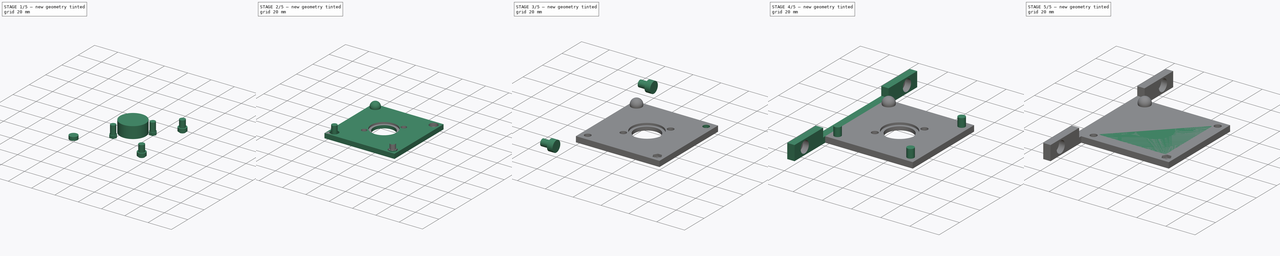
[diagram: build sequence overview — one tinted view per stage of 5, left to right]
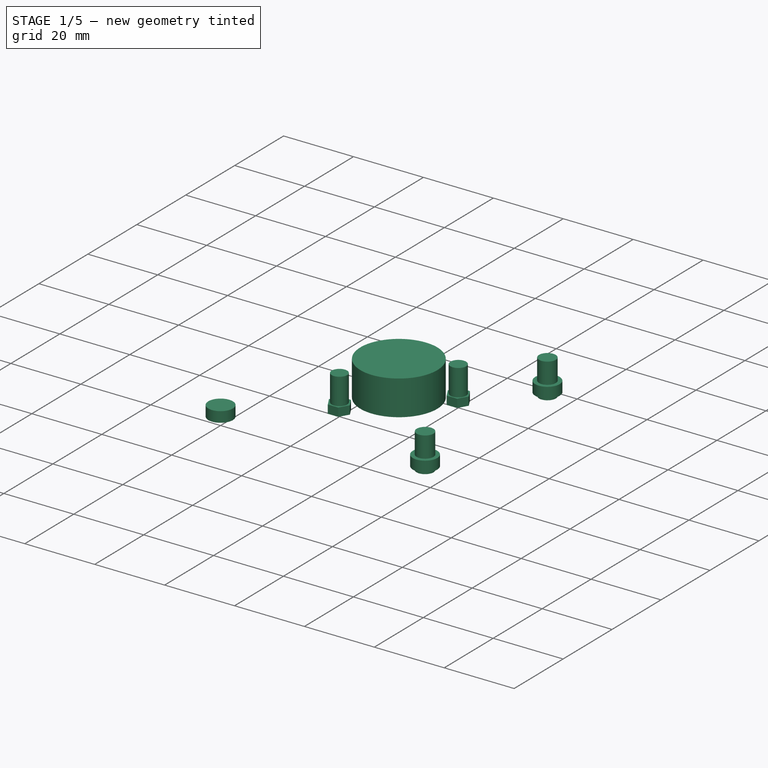
[diagram: stage 1 of 5 — iso view after this stage's code; geometry added in this stage tinted green]
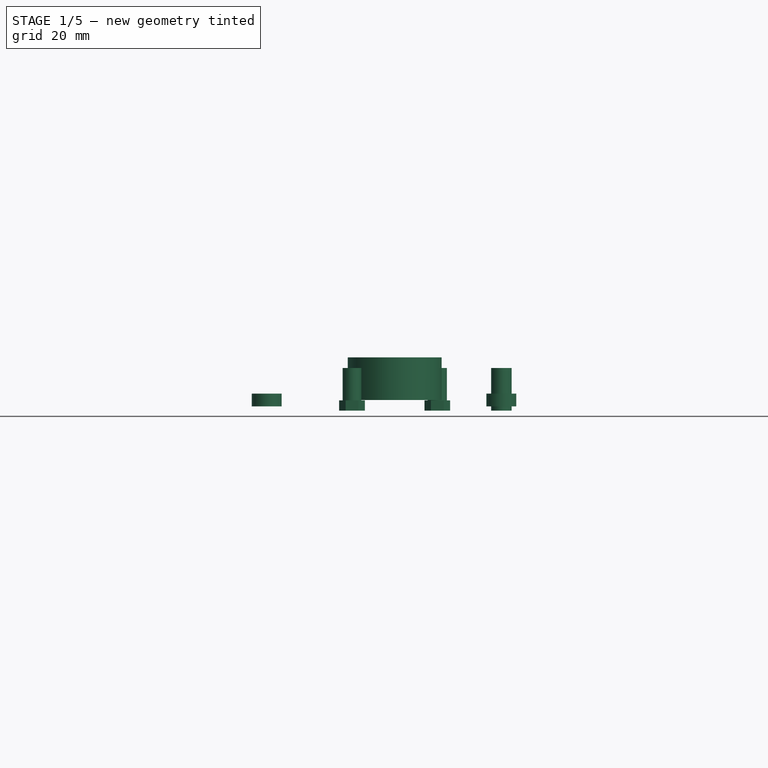
[diagram: stage 1 of 5 — front view after this stage's code; geometry added in this stage tinted green]
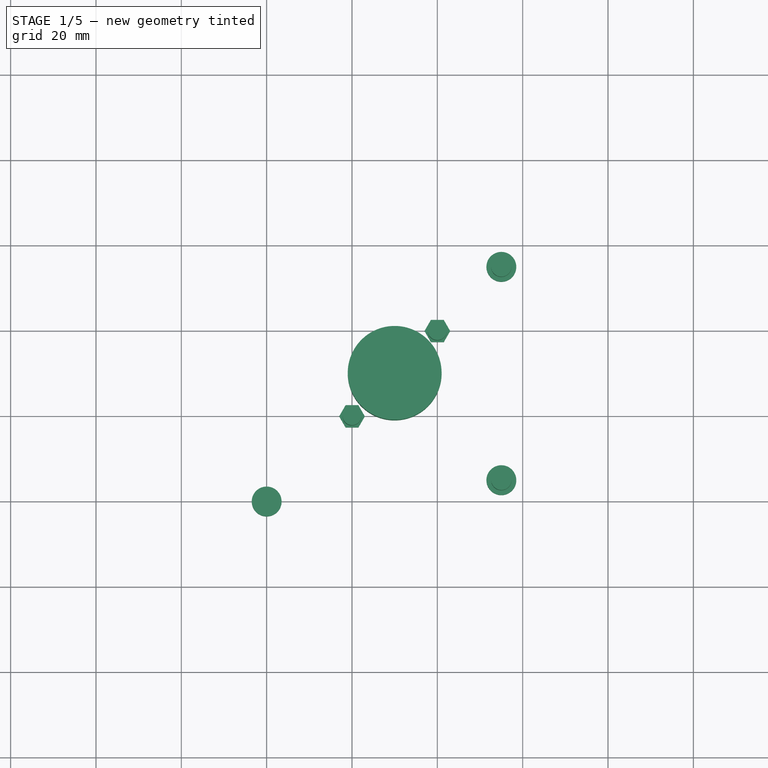
[diagram: stage 1 of 5 — top view after this stage's code; geometry added in this stage tinted green]
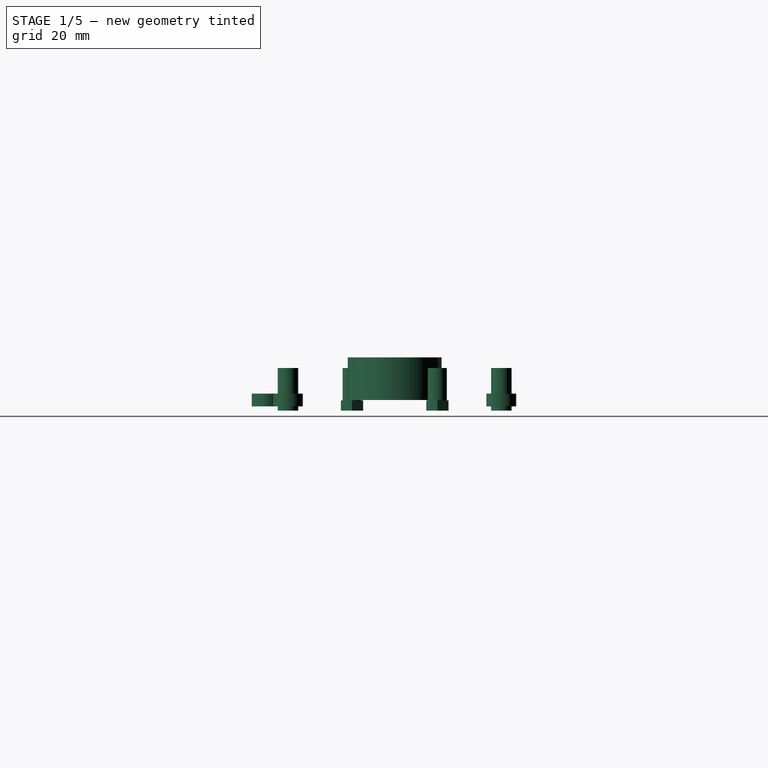
[diagram: stage 1 of 5 — right view after this stage's code; geometry added in this stage tinted green]
FCSTD DOCUMENT  (FreeCAD 0.21R0.20.1)
Label: KinematicMount01
License: All rights reserved
LicenseURL: https://en.wikipedia.org/wiki/All_rights_reserved
objects: Part::Cylinder×28, Part::MultiFuse×20, Part::Cut×11, Part::Box×6, App::Link×6, Part::Compound×5, Sketcher::SketchObject×3, Part::Extrusion×3, Part::Sphere×2
note: 78 computed .brp shape members not serialized (recipe doc carries the construction recipe); baked Part::Feature solids carry a one-line shape summary decoded from their .brp
EXTERNAL_REF file=../Fastener/Templates/Nut_DIN934_M4.FCStd obj=Extrude

FEATURE [Part::Cylinder] Cylinder024
  Angle = 360
  AttacherType = Attacher::AttachEngine3D
  FirstAngle = 0
  Height = 3
  Placement = pos=(0,0,1) rot=(0,0,1;0rad)
  Radius = 3.5
  SecondAngle = 0
FEATURE [Part::Cylinder] Cylinder025
  Angle = 360
  AttacherType = Attacher::AttachEngine3D
  FirstAngle = 0
  Height = 10
  Radius = 2.4
  SecondAngle = 0
FEATURE [Part::Cylinder] Cylinder026
  Angle = 360
  AttacherType = Attacher::AttachEngine3D
  FirstAngle = 0
  Height = 3
  Placement = pos=(0,0,1) rot=(0,0,1;0rad)
  Radius = 3.5
  SecondAngle = 0
FEATURE [Part::Cylinder] Cylinder027
  Angle = 360
  AttacherType = Attacher::AttachEngine3D
  FirstAngle = 0
  Height = 10
  Radius = 2.4
  SecondAngle = 0
FEATURE [Part::Cylinder] Cylinder028
  Angle = 360
  AttacherType = Attacher::AttachEngine3D
  FirstAngle = 0
  Height = 3
  Placement = pos=(0,0,1) rot=(0,0,1;0rad)
  Radius = 3.5
  SecondAngle = 0
FEATURE [Part::MultiFuse] Fusion023
  Placement = pos=(55,5,0) rot=(0,0,1;0rad)
  Shapes = -> [Cylinder025,Cylinder026]
FEATURE [Part::MultiFuse] Fusion024
  Placement = pos=(55,55,0) rot=(0,0,1;0rad)
  Shapes = -> [Cylinder027,Cylinder028]
FEATURE [Part::Cylinder] Cylinder029
  Angle = 360
  AttacherType = Attacher::AttachEngine3D
  FirstAngle = 0
  Height = 10
  Placement = pos=(30,30,2.5) rot=(0,0,1;0rad)
  Radius = 11
  SecondAngle = 0
FEATURE [Sketcher::SketchObject] Sketch001
  FullyConstrained = true
  sketch-geometry (7):
    g0: LineSegment StartX=-3.005 StartY=0 StartZ=0 EndX=-1.5025 EndY=-2.60241 EndZ=0
    g1: LineSegment StartX=-1.5025 StartY=-2.60241 StartZ=0 EndX=1.5025 EndY=-2.60241 EndZ=0
    g2: LineSegment StartX=1.5025 StartY=-2.60241 StartZ=0 EndX=3.005 EndY=-9.7513e-12 EndZ=0
    g3: LineSegment StartX=3.005 StartY=-9.7512e-12 StartZ=0 EndX=1.5025 EndY=2.60241 EndZ=0
    g4: LineSegment StartX=1.5025 StartY=2.60241 StartZ=0 EndX=-1.5025 EndY=2.60241 EndZ=0
    g5: LineSegment StartX=-1.5025 StartY=2.60241 StartZ=0 EndX=-3.005 EndY=0 EndZ=0
    g6: Circle CenterX=0 CenterY=0 CenterZ=0 NormalX=0 NormalY=0 NormalZ=1 AngleXU=0 Radius=3.005
  constraints (16):
    c: Coincident(g0,g1)
    c: Coincident(g1,g2)
    c: Coincident(g2,g3)
    c: Coincident(g3,g4)
    c: Coincident(g4,g5)
    c: Coincident(g5,g0)
    c: Equal(g0, g1-g5) x5
    c: PointOnObject(g0,g6)
    c: PointOnObject(g1,g6)
    c: PointOnObject(g2,g6)
    c: PointOnObject(g3,g6)
    c: PointOnObject(g4,g6)
    c: PointOnObject(g5,g6)
    c: Coincident(g6,g-1)
    c: PointOnObject(g5,g-1)
    c: DistanceX(g0,g2) = 6.01
FEATURE [Part::Extrusion] Extrude001  label="DIN934_M011"
  Base = -> Sketch001
  Dir = (0,0,1)
  DirMode = 2
  FaceMakerClass = Part::FaceMakerBullseye
  LengthFwd = 2.4
  LengthRev = 0
  Placement = pos=(20,20,0) rot=(0,0,1;0rad)
  Solid = true
  Symmetric = false
FEATURE [Sketcher::SketchObject] Sketch002
  FullyConstrained = true
  sketch-geometry (7):
    g0: LineSegment StartX=-3.005 StartY=0 StartZ=0 EndX=-1.5025 EndY=-2.60241 EndZ=0
    g1: LineSegment StartX=-1.5025 StartY=-2.60241 StartZ=0 EndX=1.5025 EndY=-2.60241 EndZ=0
    g2: LineSegment StartX=1.5025 StartY=-2.60241 StartZ=0 EndX=3.005 EndY=-9.7513e-12 EndZ=0
    g3: LineSegment StartX=3.005 StartY=-9.7512e-12 StartZ=0 EndX=1.5025 EndY=2.60241 EndZ=0
    g4: LineSegment StartX=1.5025 StartY=2.60241 StartZ=0 EndX=-1.5025 EndY=2.60241 EndZ=0
    g5: LineSegment StartX=-1.5025 StartY=2.60241 StartZ=0 EndX=-3.005 EndY=0 EndZ=0
    g6: Circle CenterX=0 CenterY=0 CenterZ=0 NormalX=0 NormalY=0 NormalZ=1 AngleXU=0 Radius=3.005
  constraints (16):
    c: Coincident(g0,g1)
    c: Coincident(g1,g2)
    c: Coincident(g2,g3)
    c: Coincident(g3,g4)
    c: Coincident(g4,g5)
    c: Coincident(g5,g0)
    c: Equal(g0, g1-g5) x5
    c: PointOnObject(g0,g6)
    c: PointOnObject(g1,g6)
    c: PointOnObject(g2,g6)
    c: PointOnObject(g3,g6)
    c: PointOnObject(g4,g6)
    c: PointOnObject(g5,g6)
    c: Coincident(g6,g-1)
    c: PointOnObject(g5,g-1)
    c: DistanceX(g0,g2) = 6.01
FEATURE [Part::Extrusion] Extrude002  label="DIN934_M012"
  Base = -> Sketch002
  Dir = (0,0,1)
  DirMode = 2
  FaceMakerClass = Part::FaceMakerBullseye
  LengthFwd = 2.4
  LengthRev = 0
  Placement = pos=(40,40,0) rot=(0,0,1;0rad)
  Solid = true
  Symmetric = false
FEATURE [Part::Cylinder] Cylinder030
  Angle = 360
  AttacherType = Attacher::AttachEngine3D
  FirstAngle = 0
  Height = 10
  Placement = pos=(20,20,0) rot=(0,0,1;0rad)
  Radius = 2.2
  SecondAngle = 0
FEATURE [Part::Cylinder] Cylinder031
  Angle = 360
  AttacherType = Attacher::AttachEngine3D
  FirstAngle = 0
  Height = 10
  Placement = pos=(40,40,0) rot=(0,0,1;0rad)
  Radius = 2.25
  SecondAngle = 0
FEATURE [Part::MultiFuse] Fusion025
  Shapes = -> [Extrude001,Cylinder030]
FEATURE [Part::MultiFuse] Fusion026
  Shapes = -> [Extrude002,Cylinder031]
FEATURE [Part::Compound] Compound004
  Links = -> [Fusion025,Fusion026]
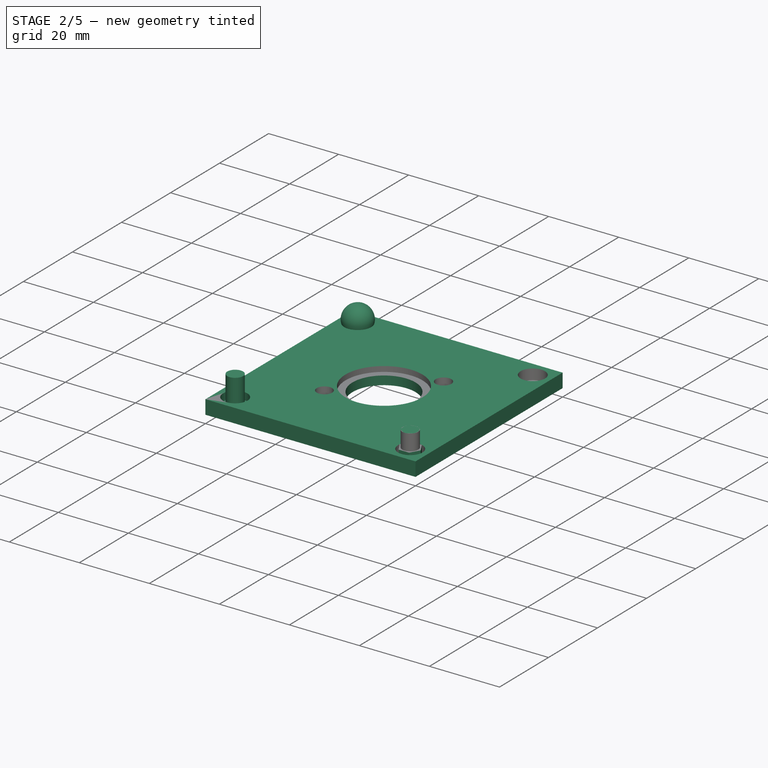
[diagram: stage 2 of 5 — iso view after this stage's code; geometry added in this stage tinted green]
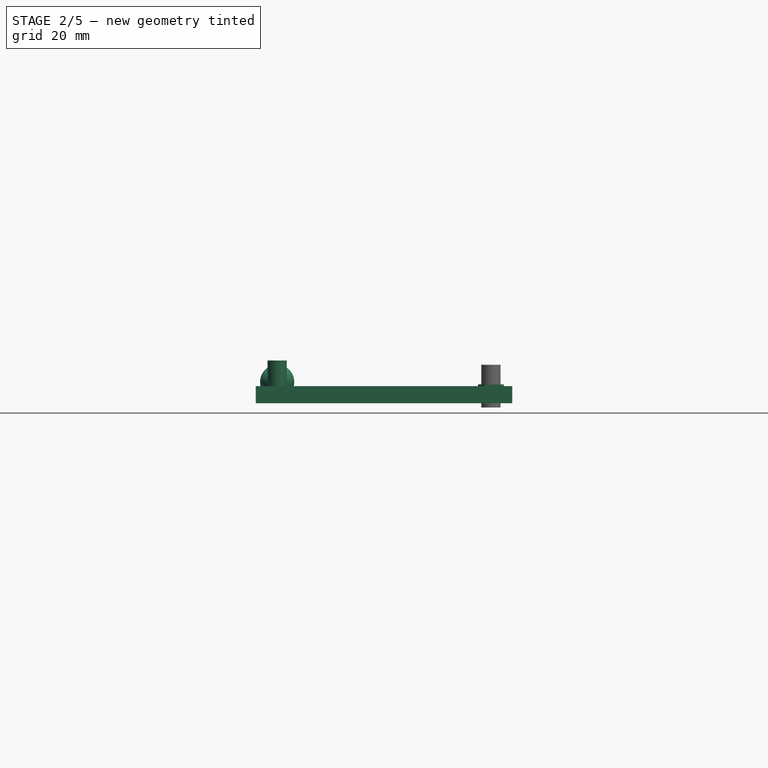
[diagram: stage 2 of 5 — front view after this stage's code; geometry added in this stage tinted green]
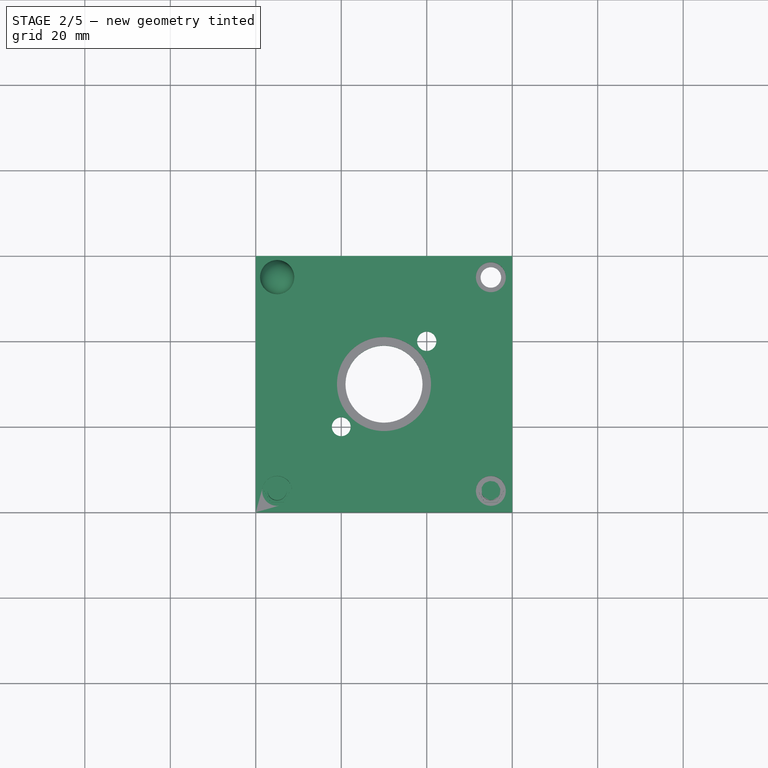
[diagram: stage 2 of 5 — top view after this stage's code; geometry added in this stage tinted green]
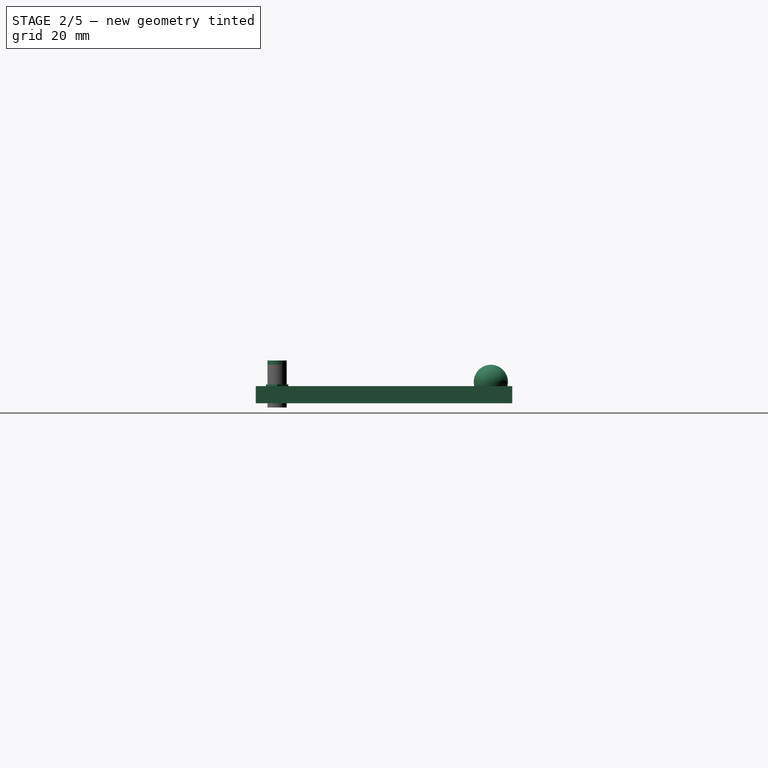
[diagram: stage 2 of 5 — right view after this stage's code; geometry added in this stage tinted green]
FEATURE [Part::Cylinder] Cylinder018
  Angle = 360
  AttacherType = Attacher::AttachEngine3D
  FirstAngle = 0
  Height = 10
  Placement = pos=(5,5,0) rot=(0,0,1;0rad)
  Radius = 2.25
  SecondAngle = 0
FEATURE [Part::Cylinder] Cylinder019
  Angle = 360
  AttacherType = Attacher::AttachEngine3D
  FirstAngle = 0
  Height = 10
  Placement = pos=(55,5,-3) rot=(0,0,1;0rad)
  Radius = 2.25
  SecondAngle = 0
FEATURE [App::Link] Link004  label="DIN934_M009"
  LinkPlacement = pos=(5,5,0) rot=(0,0,1;0rad)
  LinkedObject = -> Extrude
  Placement = pos=(5,5,0) rot=(0,0,1;0rad)
FEATURE [Part::MultiFuse] Fusion018
  Shapes = -> [Link004,Cylinder018]
FEATURE [App::Link] Link005  label="DIN934_M010"
  LinkPlacement = pos=(55,5,0) rot=(0,0,1;0rad)
  LinkedObject = -> Extrude
  Placement = pos=(55,5,0) rot=(0,0,1;0rad)
FEATURE [Part::MultiFuse] Fusion019
  Placement = pos=(0,0,2) rot=(0,0,1;0rad)
  Shapes = -> [Link005,Cylinder019]
FEATURE [Part::Sphere] Sphere001
  Angle1 = -90
  Angle2 = 90
  Angle3 = 360
  AttacherType = Attacher::AttachEngine3D
  Placement = pos=(5,55,5) rot=(0,0,1;0rad)
  Radius = 4
FEATURE [Part::Cylinder] Cylinder022
  Angle = 360
  AttacherType = Attacher::AttachEngine3D
  FirstAngle = 0
  Height = 10
  Placement = pos=(30,30,0) rot=(0,0,1;0rad)
  Radius = 9
  SecondAngle = 0
FEATURE [Part::Box] Box005  label="Cube005"
  AttacherType = Attacher::AttachEngine3D
  Height = 4
  Length = 60
  Width = 60
FEATURE [Part::Cylinder] Cylinder023
  Angle = 360
  AttacherType = Attacher::AttachEngine3D
  FirstAngle = 0
  Height = 10
  Radius = 2.4
  SecondAngle = 0
FEATURE [Part::MultiFuse] Fusion022
  Placement = pos=(5,5,0) rot=(0,0,1;0rad)
  Shapes = -> [Cylinder023,Cylinder024]
FEATURE [Part::Compound] Compound003
  Links = -> [Fusion024,Fusion022,Fusion023]
FEATURE [Part::Cut] Cut007  label="KinematicMount_Plate002"
  Base = -> Box005
  Tool = -> Compound003
FEATURE [Part::Cut] Cut008
  Base = -> Cut007
  Tool = -> Cylinder022
FEATURE [Part::Cut] Cut009
  Base = -> Cut008
  Tool = -> Cylinder029
FEATURE [Part::Cut] Cut010  label="KinematicMount_Holder01_20mm"
  Base = -> Cut009
  Tool = -> Compound004

RESOLVED EXTERNAL PARTS (link-assembly join: the EXTERNAL_REF files above that resolve inside this repo's crawl, each included once):
---- part ../Fastener/Templates/Nut_DIN934_M4.FCStd = doc fcstd_294c8c891653 ----
FCSTD DOCUMENT  (FreeCAD 0.21R0.20.1)
Label: Nut_DIN934_M3
License: All rights reserved
LicenseURL: https://en.wikipedia.org/wiki/All_rights_reserved
objects: Sketcher::SketchObject×1, Part::Extrusion×1
note: 2 computed .brp shape members not serialized (recipe doc carries the construction recipe); baked Part::Feature solids carry a one-line shape summary decoded from their .brp

FEATURE [Sketcher::SketchObject] Sketch
  FullyConstrained = true
  sketch-geometry (7):
    g0: LineSegment StartX=-3.005 StartY=0 StartZ=0 EndX=-1.5025 EndY=-2.60241 EndZ=0
    g1: LineSegment StartX=-1.5025 StartY=-2.60241 StartZ=0 EndX=1.5025 EndY=-2.60241 EndZ=0
    g2: LineSegment StartX=1.5025 StartY=-2.60241 StartZ=0 EndX=3.005 EndY=-9.7513e-12 EndZ=0
    g3: LineSegment StartX=3.005 StartY=-9.7512e-12 StartZ=0 EndX=1.5025 EndY=2.60241 EndZ=0
    g4: LineSegment StartX=1.5025 StartY=2.60241 StartZ=0 EndX=-1.5025 EndY=2.60241 EndZ=0
    g5: LineSegment StartX=-1.5025 StartY=2.60241 StartZ=0 EndX=-3.005 EndY=0 EndZ=0
    g6: Circle CenterX=0 CenterY=0 CenterZ=0 NormalX=0 NormalY=0 NormalZ=1 AngleXU=0 Radius=3.005
  constraints (16):
    c: Coincident(g0,g1)
    c: Coincident(g1,g2)
    c: Coincident(g2,g3)
    c: Coincident(g3,g4)
    c: Coincident(g4,g5)
    c: Coincident(g5,g0)
    c: Equal(g0, g1-g5) x5
    c: PointOnObject(g0,g6)
    c: PointOnObject(g1,g6)
    c: PointOnObject(g2,g6)
    c: PointOnObject(g3,g6)
    c: PointOnObject(g4,g6)
    c: PointOnObject(g5,g6)
    c: Coincident(g6,g-1)
    c: PointOnObject(g5,g-1)
    c: DistanceX(g0,g2) = 6.01
FEATURE [Part::Extrusion] Extrude  label="DIN934_M3"
  Base = -> Sketch
  Dir = (0,0,1)
  DirMode = 2
  FaceMakerClass = Part::FaceMakerBullseye
  LengthFwd = 2.4
  LengthRev = 0
  Solid = true
  Symmetric = false
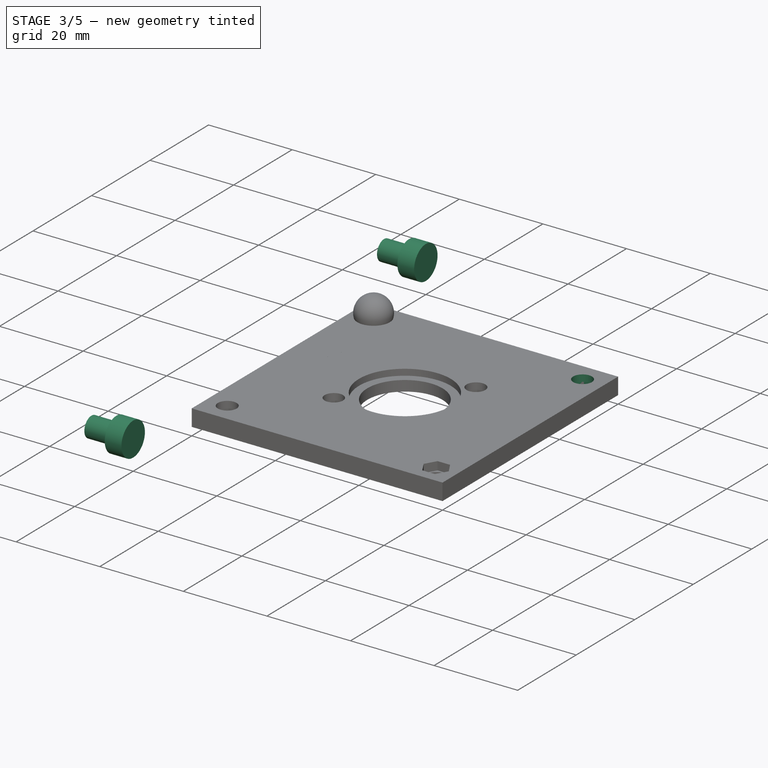
[diagram: stage 3 of 5 — iso view after this stage's code; geometry added in this stage tinted green]
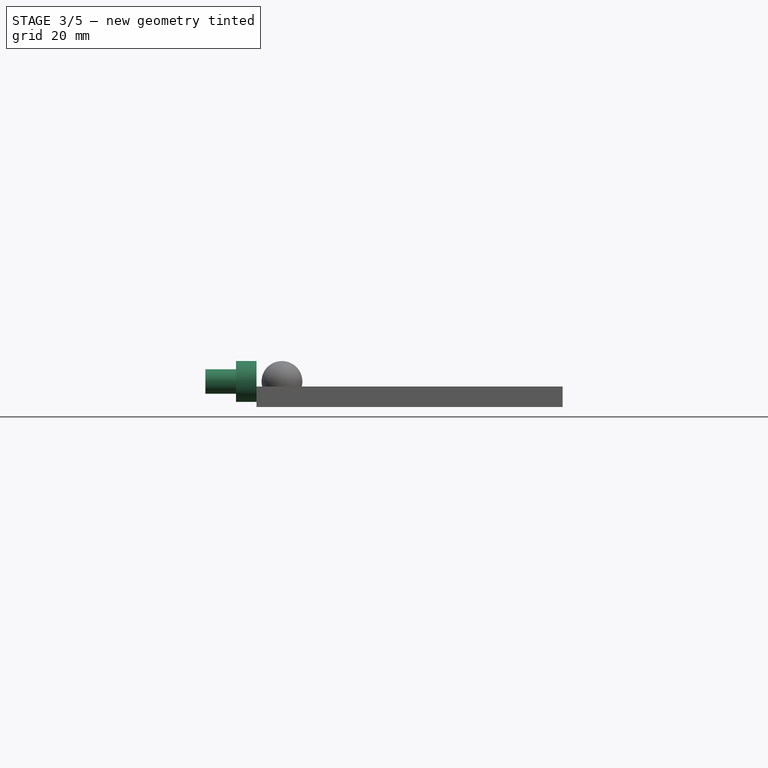
[diagram: stage 3 of 5 — front view after this stage's code; geometry added in this stage tinted green]
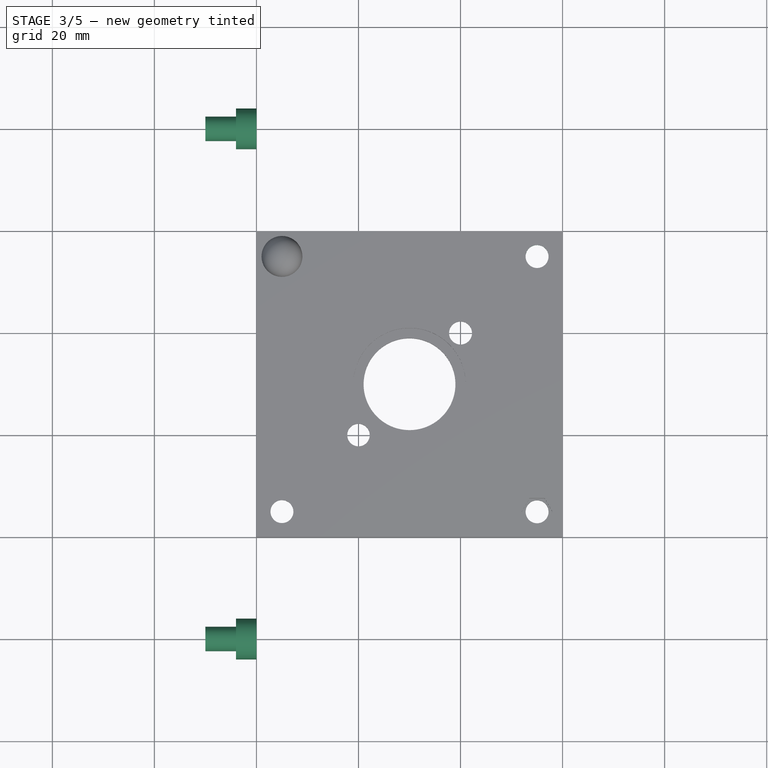
[diagram: stage 3 of 5 — top view after this stage's code; geometry added in this stage tinted green]
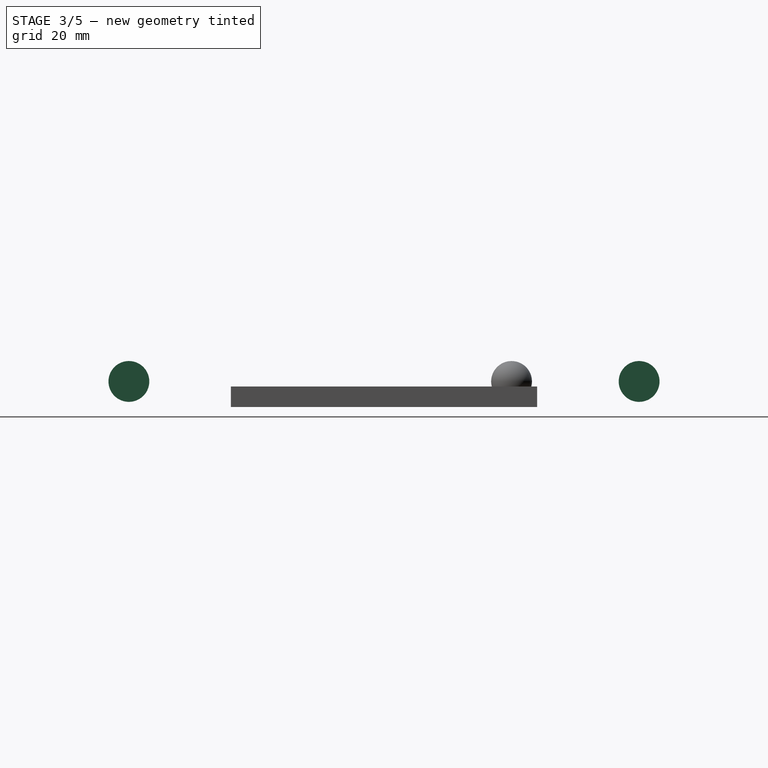
[diagram: stage 3 of 5 — right view after this stage's code; geometry added in this stage tinted green]
FEATURE [Part::Cylinder] Cylinder014
  Angle = 360
  AttacherType = Attacher::AttachEngine3D
  FirstAngle = 0
  Height = 4
  Radius = 4
  SecondAngle = 0
FEATURE [Part::Cylinder] Cylinder015
  Angle = 360
  AttacherType = Attacher::AttachEngine3D
  FirstAngle = 0
  Height = 10
  Radius = 2.4
  SecondAngle = 0
FEATURE [Part::Cylinder] Cylinder016
  Angle = 360
  AttacherType = Attacher::AttachEngine3D
  FirstAngle = 0
  Height = 4
  Radius = 4
  SecondAngle = 0
FEATURE [Part::Cylinder] Cylinder017
  Angle = 360
  AttacherType = Attacher::AttachEngine3D
  FirstAngle = 0
  Height = 10
  Radius = 2.4
  SecondAngle = 0
FEATURE [Part::MultiFuse] Fusion014
  Placement = pos=(-50,0,5) rot=(1,0,0;1.5708rad)
  Shapes = -> [Cylinder015,Cylinder014]
FEATURE [Part::MultiFuse] Fusion015
  Placement = pos=(50,0,5) rot=(1,0,0;1.5708rad)
  Shapes = -> [Cylinder017,Cylinder016]
FEATURE [Part::MultiFuse] Fusion016
  Placement = pos=(0,30,0) rot=(0,0,1;-1.5708rad)
  Shapes = -> [Fusion015,Fusion014]
FEATURE [Sketcher::SketchObject] Sketch
  FullyConstrained = true
  sketch-geometry (7):
    g0: LineSegment StartX=-3.005 StartY=0 StartZ=0 EndX=-1.5025 EndY=-2.60241 EndZ=0
    g1: LineSegment StartX=-1.5025 StartY=-2.60241 StartZ=0 EndX=1.5025 EndY=-2.60241 EndZ=0
    g2: LineSegment StartX=1.5025 StartY=-2.60241 StartZ=0 EndX=3.005 EndY=-9.7513e-12 EndZ=0
    g3: LineSegment StartX=3.005 StartY=-9.7512e-12 StartZ=0 EndX=1.5025 EndY=2.60241 EndZ=0
    g4: LineSegment StartX=1.5025 StartY=2.60241 StartZ=0 EndX=-1.5025 EndY=2.60241 EndZ=0
    g5: LineSegment StartX=-1.5025 StartY=2.60241 StartZ=0 EndX=-3.005 EndY=0 EndZ=0
    g6: Circle CenterX=0 CenterY=0 CenterZ=0 NormalX=0 NormalY=0 NormalZ=1 AngleXU=0 Radius=3.005
  constraints (16):
    c: Coincident(g0,g1)
    c: Coincident(g1,g2)
    c: Coincident(g2,g3)
    c: Coincident(g3,g4)
    c: Coincident(g4,g5)
    c: Coincident(g5,g0)
    c: Equal(g0, g1-g5) x5
    c: PointOnObject(g0,g6)
    c: PointOnObject(g1,g6)
    c: PointOnObject(g2,g6)
    c: PointOnObject(g3,g6)
    c: PointOnObject(g4,g6)
    c: PointOnObject(g5,g6)
    c: Coincident(g6,g-1)
    c: PointOnObject(g5,g-1)
    c: DistanceX(g0,g2) = 6.01
FEATURE [Part::Extrusion] Extrude  label="DIN934_M007"
  Base = -> Sketch
  Dir = (0,0,1)
  DirMode = 2
  FaceMakerClass = Part::FaceMakerBullseye
  LengthFwd = 2.4
  LengthRev = 0
  Solid = true
  Symmetric = false
FEATURE [Part::Box] Box004  label="Cube004"
  AttacherType = Attacher::AttachEngine3D
  Height = 4
  Length = 60
  Width = 60
FEATURE [Part::Cylinder] Cylinder020
  Angle = 360
  AttacherType = Attacher::AttachEngine3D
  FirstAngle = 0
  Height = 10
  Placement = pos=(55,55,0) rot=(0,0,1;0rad)
  Radius = 2.25
  SecondAngle = 0
FEATURE [Part::Cylinder] Cylinder021
  Angle = 360
  AttacherType = Attacher::AttachEngine3D
  FirstAngle = 0
  Height = 10
  Placement = pos=(30,30,0) rot=(0,0,1;0rad)
  Radius = 22.5
  SecondAngle = 0
FEATURE [App::Link] Link003  label="DIN934_M008"
  LinkPlacement = pos=(55,55,0) rot=(0,0,1;0rad)
  LinkedObject = -> Extrude
  Placement = pos=(55,55,0) rot=(0,0,1;0rad)
FEATURE [Part::MultiFuse] Fusion017
  Shapes = -> [Link003,Cylinder020]
FEATURE [Part::Compound] Compound002
  Links = -> [Fusion017,Fusion018,Fusion019]
FEATURE [Part::Cut] Cut005
  Base = -> Box004
  Tool = -> Compound002
FEATURE [Part::Cut] Cut006
  Base = -> Cut005
  Tool = -> Cylinder021
FEATURE [Part::MultiFuse] Fusion020  label="BaseHolder001"
  Shapes = -> [Cut006,Sphere001]
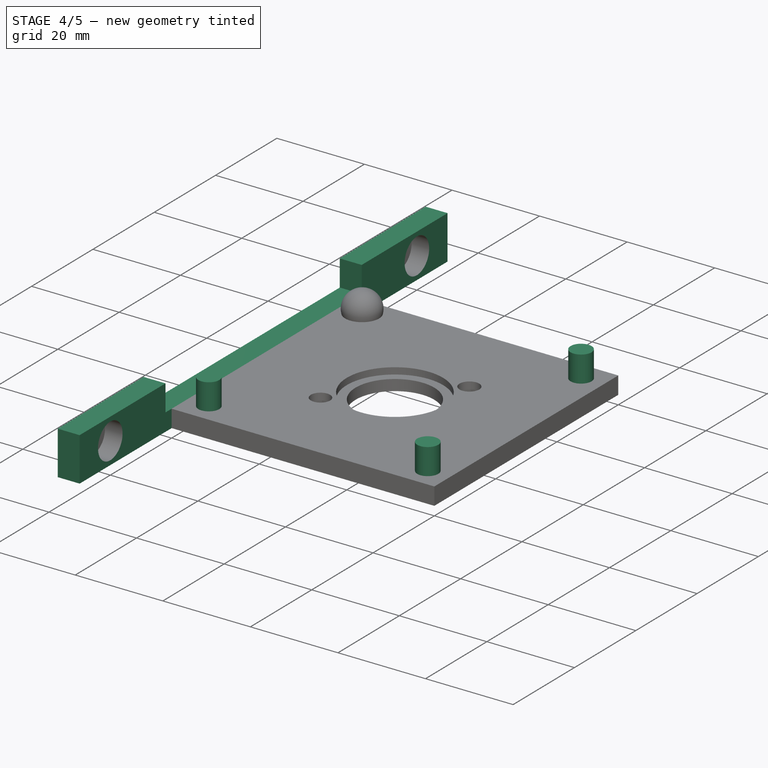
[diagram: stage 4 of 5 — iso view after this stage's code; geometry added in this stage tinted green]
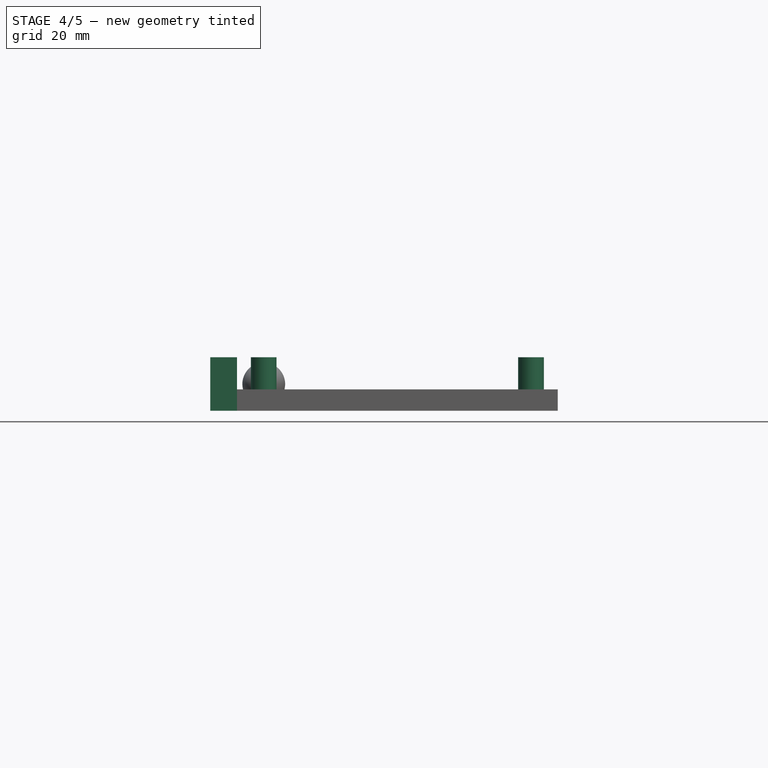
[diagram: stage 4 of 5 — front view after this stage's code; geometry added in this stage tinted green]
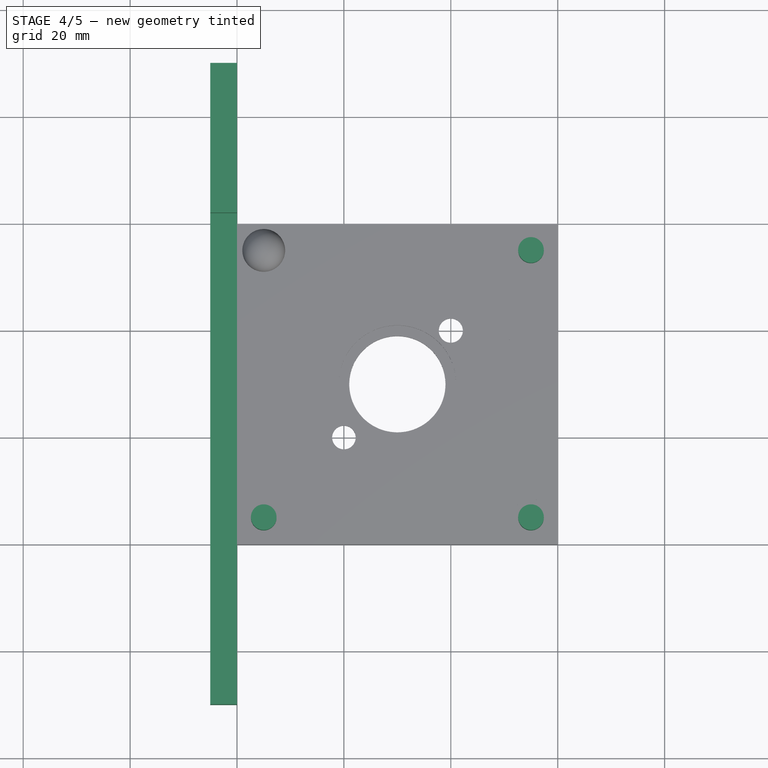
[diagram: stage 4 of 5 — top view after this stage's code; geometry added in this stage tinted green]
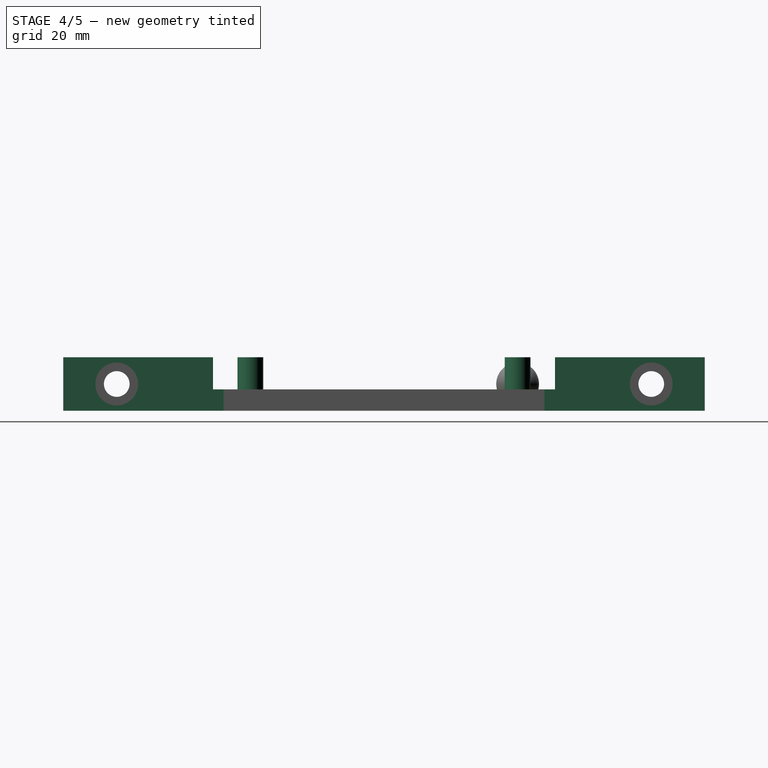
[diagram: stage 4 of 5 — right view after this stage's code; geometry added in this stage tinted green]
FEATURE [Part::Cylinder] Cylinder004
  Angle = 360
  AttacherType = Attacher::AttachEngine3D
  FirstAngle = 0
  Height = 10
  Radius = 2.4
  SecondAngle = 0
FEATURE [Part::Cylinder] Cylinder005
  Angle = 360
  AttacherType = Attacher::AttachEngine3D
  FirstAngle = 0
  Height = 3
  Placement = pos=(0,0,1) rot=(0,0,1;0rad)
  Radius = 3.5
  SecondAngle = 0
FEATURE [Part::MultiFuse] Fusion004
  Placement = pos=(5,5,0) rot=(0,0,1;0rad)
  Shapes = -> [Cylinder004,Cylinder005]
FEATURE [Part::Cylinder] Cylinder006
  Angle = 360
  AttacherType = Attacher::AttachEngine3D
  FirstAngle = 0
  Height = 10
  Radius = 2.4
  SecondAngle = 0
FEATURE [Part::Cylinder] Cylinder007
  Angle = 360
  AttacherType = Attacher::AttachEngine3D
  FirstAngle = 0
  Height = 3
  Placement = pos=(0,0,1) rot=(0,0,1;0rad)
  Radius = 3.5
  SecondAngle = 0
FEATURE [Part::MultiFuse] Fusion005
  Placement = pos=(55,5,0) rot=(0,0,1;0rad)
  Shapes = -> [Cylinder006,Cylinder007]
FEATURE [Part::Cylinder] Cylinder008
  Angle = 360
  AttacherType = Attacher::AttachEngine3D
  FirstAngle = 0
  Height = 10
  Radius = 2.4
  SecondAngle = 0
FEATURE [Part::Cylinder] Cylinder009
  Angle = 360
  AttacherType = Attacher::AttachEngine3D
  FirstAngle = 0
  Height = 3
  Placement = pos=(0,0,1) rot=(0,0,1;0rad)
  Radius = 3.5
  SecondAngle = 0
FEATURE [Part::MultiFuse] Fusion006
  Placement = pos=(55,55,0) rot=(0,0,1;0rad)
  Shapes = -> [Cylinder008,Cylinder009]
FEATURE [Part::Compound] Compound001
  Links = -> [Fusion006,Fusion004,Fusion005]
FEATURE [Part::Box] Box002  label="Cube002"
  AttacherType = Attacher::AttachEngine3D
  Height = 10
  Length = 5
  Placement = pos=(-5,-30,0) rot=(0,0,1;0rad)
  Width = 120
FEATURE [Part::Box] Box003  label="Cube003"
  AttacherType = Attacher::AttachEngine3D
  Height = 6
  Length = 5
  Placement = pos=(-5,-2,4) rot=(0,0,1;0rad)
  Width = 64
FEATURE [Part::Cut] Cut003
  Base = -> Box002
  Tool = -> Box003
FEATURE [Part::Cut] Cut004
  Base = -> Cut003
  Tool = -> Fusion016
FEATURE [Part::MultiFuse] Fusion021  label="KinematicMount_C35Rails"
  Shapes = -> [Fusion020,Cut004]
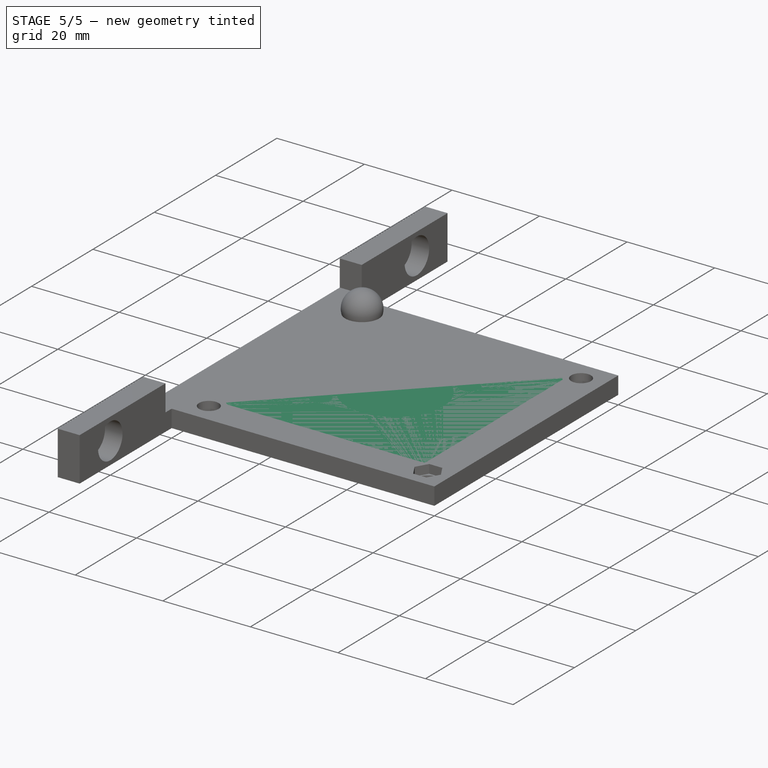
[diagram: stage 5 of 5 — iso view after this stage's code; geometry added in this stage tinted green]
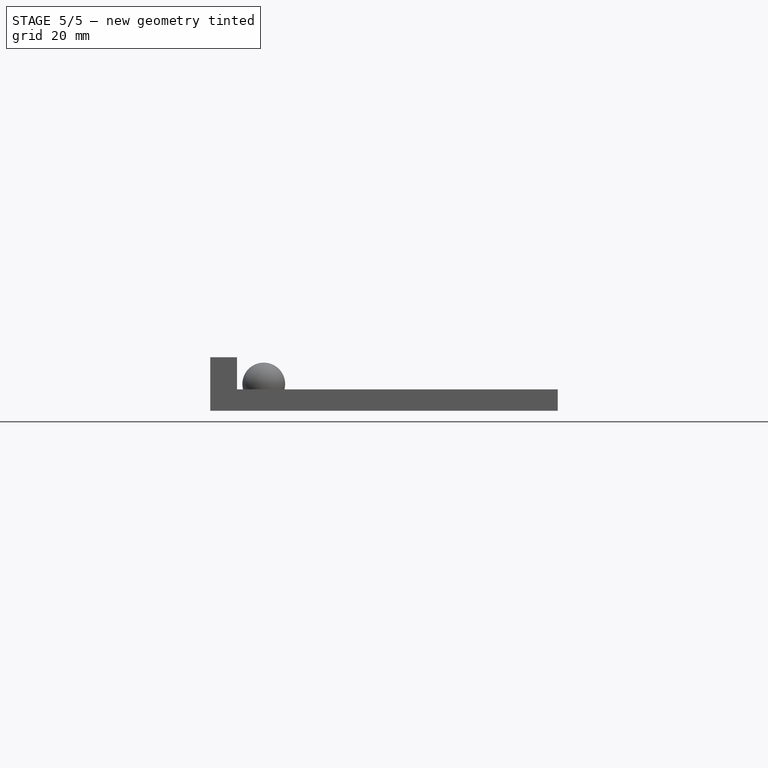
[diagram: stage 5 of 5 — front view after this stage's code; geometry added in this stage tinted green]
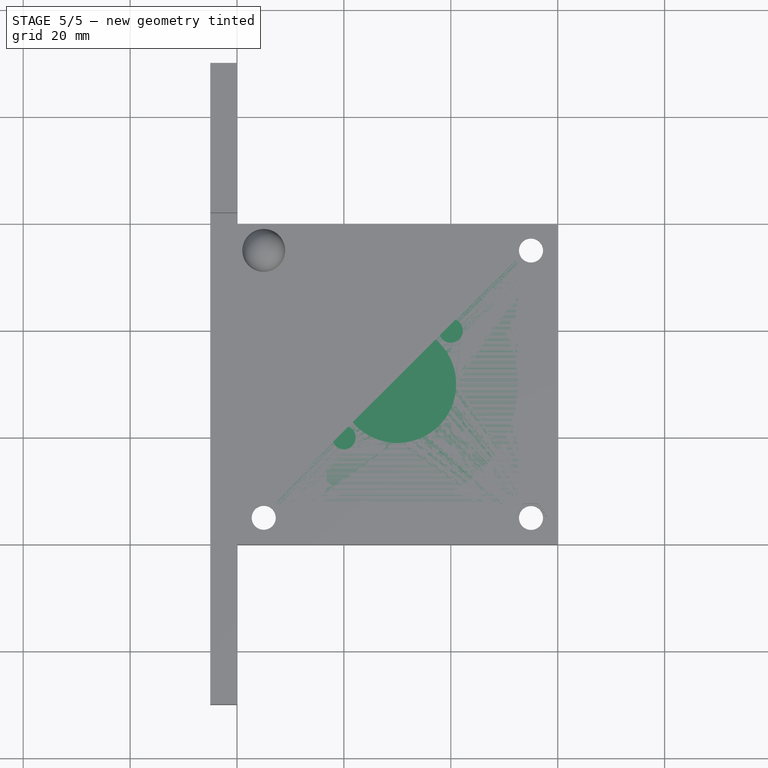
[diagram: stage 5 of 5 — top view after this stage's code; geometry added in this stage tinted green]
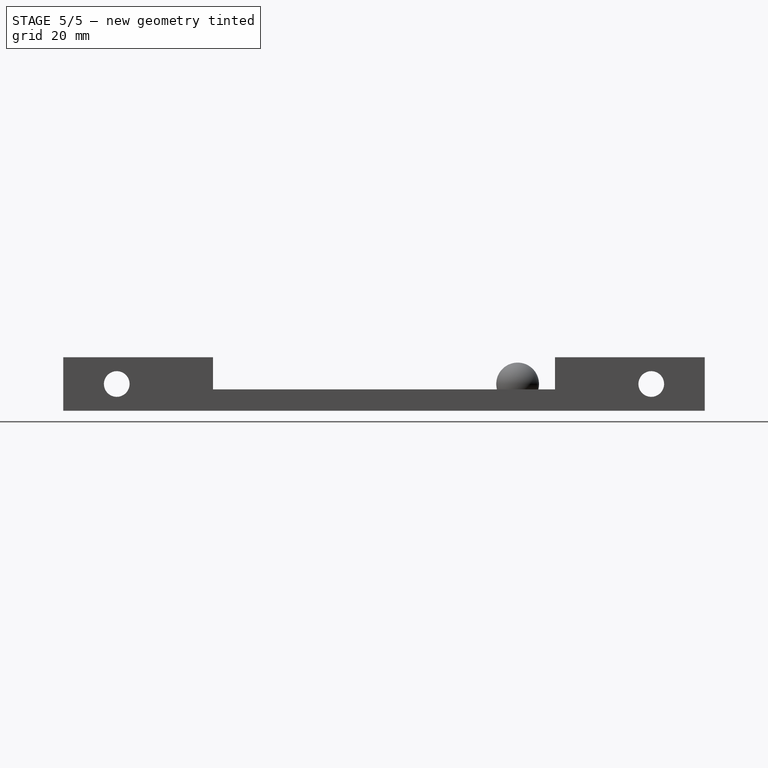
[diagram: stage 5 of 5 — right view after this stage's code; geometry added in this stage tinted green]
FEATURE [Part::Box] Box  label="Cube"
  AttacherType = Attacher::AttachEngine3D
  Height = 4
  Length = 60
  Width = 60
FEATURE [App::Link] Link  label="DIN934_M4"
  LinkPlacement = pos=(55,55,0) rot=(0,0,1;0rad)
  LinkedObject = -> <external ../Fastener/Templates/Nut_DIN934_M4.FCStd>#Extrude
  Placement = pos=(55,55,0) rot=(0,0,1;0rad)
FEATURE [App::Link] Link001  label="DIN934_M005"
  LinkPlacement = pos=(5,5,0) rot=(0,0,1;0rad)
  LinkedObject = -> <external ../Fastener/Templates/Nut_DIN934_M4.FCStd>#Extrude
  Placement = pos=(5,5,0) rot=(0,0,1;0rad)
FEATURE [App::Link] Link002  label="DIN934_M006"
  LinkPlacement = pos=(55,5,0) rot=(0,0,1;0rad)
  LinkedObject = -> <external ../Fastener/Templates/Nut_DIN934_M4.FCStd>#Extrude
  Placement = pos=(55,5,0) rot=(0,0,1;0rad)
FEATURE [Part::Cylinder] Cylinder
  Angle = 360
  AttacherType = Attacher::AttachEngine3D
  FirstAngle = 0
  Height = 10
  Placement = pos=(5,5,0) rot=(0,0,1;0rad)
  Radius = 2.25
  SecondAngle = 0
FEATURE [Part::Cylinder] Cylinder001
  Angle = 360
  AttacherType = Attacher::AttachEngine3D
  FirstAngle = 0
  Height = 10
  Placement = pos=(55,5,-3) rot=(0,0,1;0rad)
  Radius = 2.25
  SecondAngle = 0
FEATURE [Part::Cylinder] Cylinder002
  Angle = 360
  AttacherType = Attacher::AttachEngine3D
  FirstAngle = 0
  Height = 10
  Placement = pos=(55,55,0) rot=(0,0,1;0rad)
  Radius = 2.25
  SecondAngle = 0
FEATURE [Part::MultiFuse] Fusion
  Shapes = -> [Link,Cylinder002]
FEATURE [Part::MultiFuse] Fusion001
  Shapes = -> [Link001,Cylinder]
FEATURE [Part::MultiFuse] Fusion002
  Placement = pos=(0,0,2) rot=(0,0,1;0rad)
  Shapes = -> [Link002,Cylinder001]
FEATURE [Part::Compound] Compound
  Links = -> [Fusion,Fusion001,Fusion002]
FEATURE [Part::Cut] Cut
  Base = -> Box
  Tool = -> Compound
FEATURE [Part::Cylinder] Cylinder003
  Angle = 360
  AttacherType = Attacher::AttachEngine3D
  FirstAngle = 0
  Height = 10
  Placement = pos=(30,30,0) rot=(0,0,1;0rad)
  Radius = 22.5
  SecondAngle = 0
FEATURE [Part::Cut] Cut001
  Base = -> Cut
  Tool = -> Cylinder003
FEATURE [Part::Box] Box001  label="Cube001"
  AttacherType = Attacher::AttachEngine3D
  Height = 4
  Length = 60
  Width = 60
FEATURE [Part::Sphere] Sphere
  Angle1 = -90
  Angle2 = 90
  Angle3 = 360
  AttacherType = Attacher::AttachEngine3D
  Placement = pos=(5,55,5) rot=(0,0,1;0rad)
  Radius = 4
FEATURE [Part::MultiFuse] Fusion003  label="BaseHolder"
  Shapes = -> [Cut001,Sphere]
FEATURE [Part::Cut] Cut002  label="KinematicMount_Plate01"
  Base = -> Box001
  Tool = -> Compound001
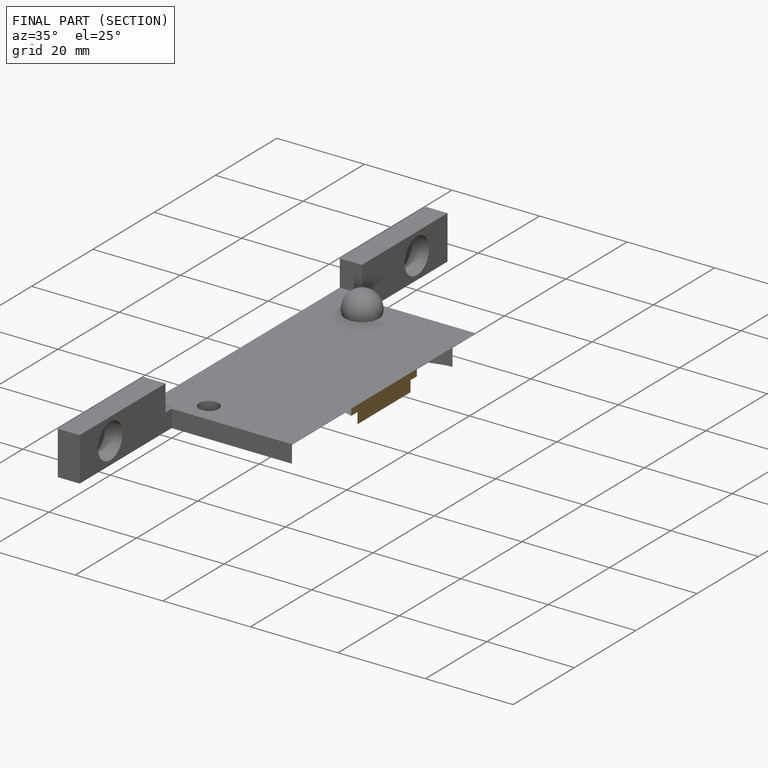
[diagram: finished part — half-section view (interior)]
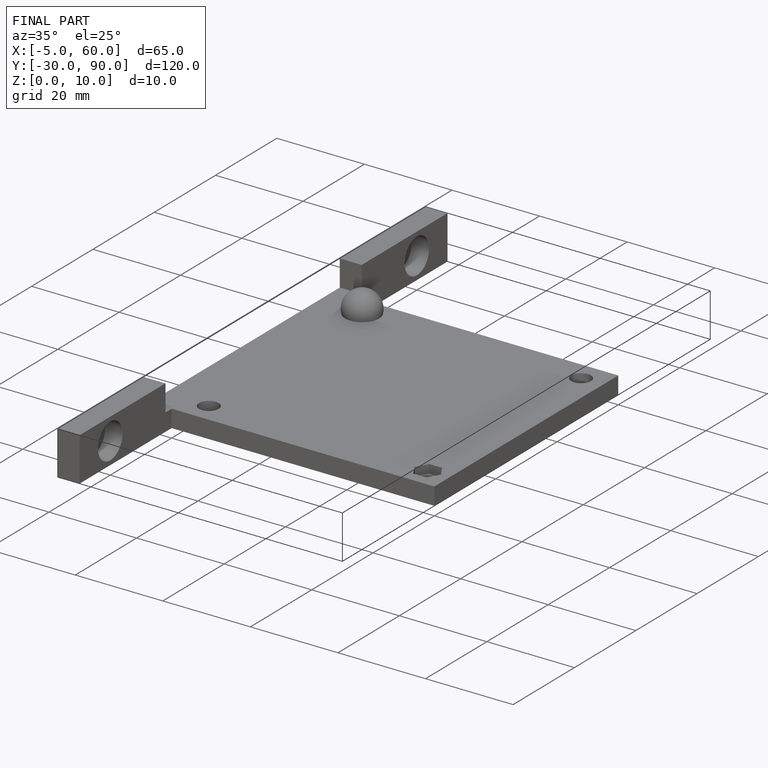
[diagram: finished part — iso view with bounding-box wireframe]
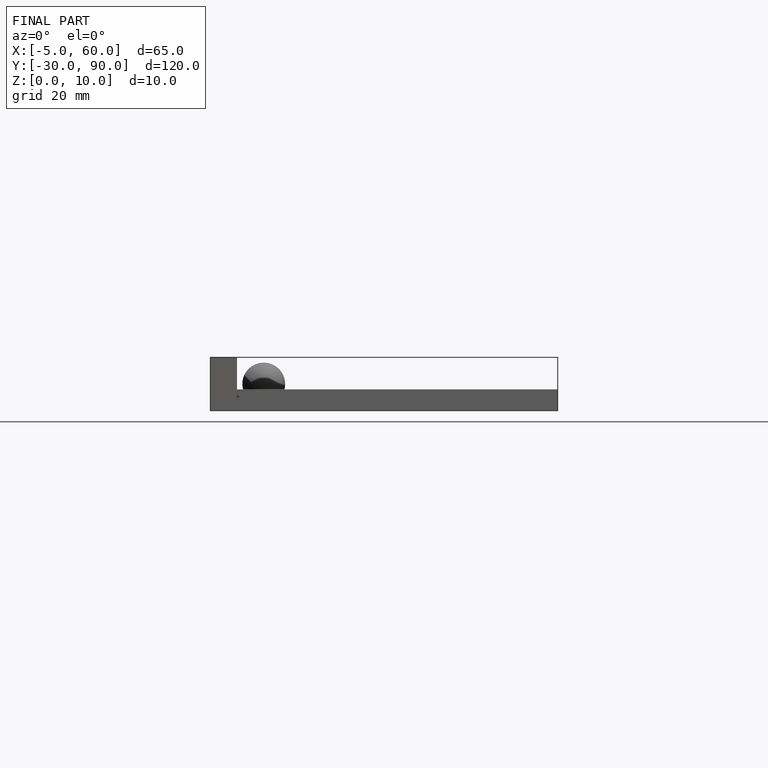
[diagram: finished part — front view with bounding-box wireframe]
